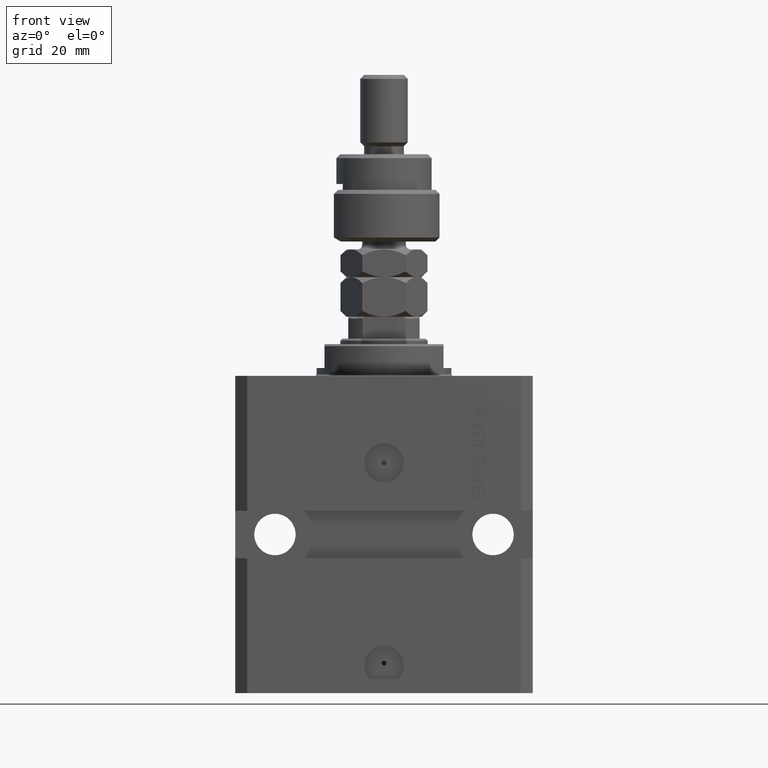
[diagram: clean part render]
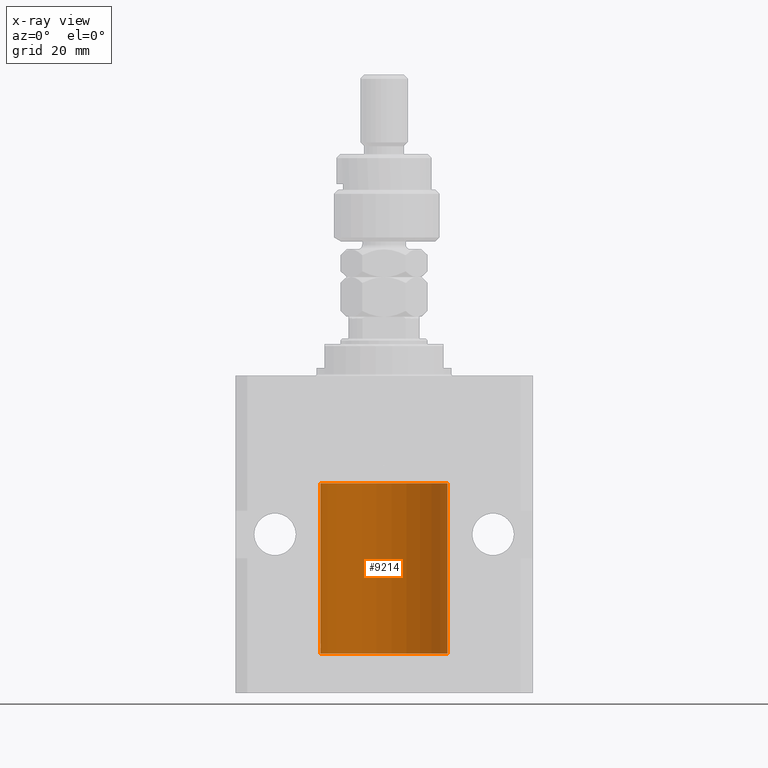
[diagram: x-ray — body ghosted, one internal face saturated and labeled with its STEP entity id]
A machine part, front view, then the same camera in x-ray: the body is ghosted and one INTERNAL B-rep face — a face not visible from any outside direction — is saturated and labeled: STEP entity #9214.
In plain terms, the highlighted cylindrical surface (partial cylindrical patch) has radius 16 mm, axis along (0, 0, 1).
Its self-contained STEP definition (entity closure, byte-faithful):
#899 = VERTEX_POINT ( 'NONE', #26130 ) ;
#2363 = EDGE_CURVE ( 'NONE', #6606, #4323, #46528, .T. ) ;
#3467 = CIRCLE ( 'NONE', #19488, 16.00000000000000000 ) ;
#4198 = CARTESIAN_POINT ( 'NONE',  ( -15.98844267028591126, 0.6088369347963314970, -68.16324735024328163 ) ) ;
#4323 = VERTEX_POINT ( 'NONE', #31046 ) ;
#6424 = AXIS2_PLACEMENT_3D ( 'NONE', #41737, #6660, #29230 ) ;
#6606 = VERTEX_POINT ( 'NONE', #46807 ) ;
#6660 = DIRECTION ( 'NONE',  ( -0.000000000000000000, -0.000000000000000000, 1.000000000000000000 ) ) ;
#7696 = CARTESIAN_POINT ( 'NONE',  ( -15.99070653155268040, 0.5573233280232966491, -67.67348148680505915 ) ) ;
#9214 = ADVANCED_FACE ( 'NONE', ( #13923 ), #25700, .F. ) ;
#9731 = CARTESIAN_POINT ( 'NONE',  ( -15.99707730059171240, 0.3150375992092334654, -67.45402333202571299 ) ) ;
#10093 = B_SPLINE_CURVE_WITH_KNOTS ( 'NONE', 3,
 ( #14734, #10725, #26023, #9731, #27005, #7696, #22991, #14976, #4198, #45835, #42554, #34784, #35026, #15463 ),
 .UNSPECIFIED., .F., .F.,
 ( 4, 2, 2, 2, 2, 2, 4 ),
 ( 9.902737362640428303E-19, 0.0002442776652680895785, 0.0004885553305361781812, 0.0009771106610723552782, 0.001221388326340464752, 0.001465665991608574008, 0.001954221322144763465 ),
 .UNSPECIFIED. ) ;
#10725 = CARTESIAN_POINT ( 'NONE',  ( -16.00000000000000711, 0.08259886010189028405, -67.37500000000001421 ) ) ;
#11223 = EDGE_CURVE ( 'NONE', #36508, #4323, #10093, .T. ) ;
#12969 = ORIENTED_EDGE ( 'NONE', *, *, #2363, .F. ) ;
#13378 = ORIENTED_EDGE ( 'NONE', *, *, #40264, .F. ) ;
#13379 = LINE ( 'NONE', #39489, #25143 ) ;
#13923 = FACE_OUTER_BOUND ( 'NONE', #41971, .T. ) ;
#13981 = CARTESIAN_POINT ( 'NONE',  ( 16.00000000000000000, 0.000000000000000000, -27.10000000000000142 ) ) ;
#14734 = CARTESIAN_POINT ( 'NONE',  ( -16.00000000000000000, -9.346608026143465119E-15, -67.37500000000000000 ) ) ;
#14935 = CARTESIAN_POINT ( 'NONE',  ( -16.00000000000000000, -9.346608026143465119E-15, -67.37500000000000000 ) ) ;
#14976 = CARTESIAN_POINT ( 'NONE',  ( -15.98778717651346426, 0.6250289588122136530, -68.08131585687053189 ) ) ;
#15000 = ORIENTED_EDGE ( 'NONE', *, *, #30706, .F. ) ;
#15463 = CARTESIAN_POINT ( 'NONE',  ( -16.00000000000013145, 3.685127046438747128E-13, -68.62500000000343903 ) ) ;
#16895 = CARTESIAN_POINT ( 'NONE',  ( -16.00000000000000000, 1.959434878635765131E-15, -70.09999999999999432 ) ) ;
#19488 = AXIS2_PLACEMENT_3D ( 'NONE', #27465, #23444, #35230 ) ;
#20649 = EDGE_CURVE ( 'NONE', #22490, #32635, #3467, .T. ) ;
#21413 = DIRECTION ( 'NONE',  ( -0.000000000000000000, -0.000000000000000000, 1.000000000000000000 ) ) ;
#22244 = CARTESIAN_POINT ( 'NONE',  ( -16.00000000000000000, 1.959434878635765131E-15, -27.10000000000000142 ) ) ;
#22490 = VERTEX_POINT ( 'NONE', #13981 ) ;
#22991 = CARTESIAN_POINT ( 'NONE',  ( -15.98779057735153586, 0.6249419637998054888, -67.83670145863507628 ) ) ;
#23444 = DIRECTION ( 'NONE',  ( 0.000000000000000000, 0.000000000000000000, 1.000000000000000000 ) ) ;
#23588 = ORIENTED_EDGE ( 'NONE', *, *, #20649, .T. ) ;
#25143 = VECTOR ( 'NONE', #32196, 1000.000000000000000 ) ;
#25700 = CYLINDRICAL_SURFACE ( 'NONE', #6424, 16.00000000000000000 ) ;
#26023 = CARTESIAN_POINT ( 'NONE',  ( -15.99934216141748244, 0.1636497843296345067, -67.39126528029308361 ) ) ;
#26130 = CARTESIAN_POINT ( 'NONE',  ( 16.00000000000000000, 0.000000000000000000, -70.09999999999999432 ) ) ;
#26814 = AXIS2_PLACEMENT_3D ( 'NONE', #30665, #31150, #34427 ) ;
#27005 = CARTESIAN_POINT ( 'NONE',  ( -15.99548640841682712, 0.3843705577988820732, -67.50046628527007897 ) ) ;
#27457 = DIRECTION ( 'NONE',  ( -0.000000000000000000, -0.000000000000000000, 1.000000000000000000 ) ) ;
#27465 = CARTESIAN_POINT ( 'NONE',  ( 0.000000000000000000, 0.000000000000000000, -27.10000000000000142 ) ) ;
#29230 = DIRECTION ( 'NONE',  ( 1.000000000000000000, 0.000000000000000000, 0.000000000000000000 ) ) ;
#30665 = CARTESIAN_POINT ( 'NONE',  ( 0.000000000000000000, 0.000000000000000000, -70.09999999999999432 ) ) ;
#30706 = EDGE_CURVE ( 'NONE', #36508, #32635, #48280, .T. ) ;
#31046 = CARTESIAN_POINT ( 'NONE',  ( -16.00000000000013145, 3.685127046438747128E-13, -68.62500000000343903 ) ) ;
#31150 = DIRECTION ( 'NONE',  ( 0.000000000000000000, 0.000000000000000000, 1.000000000000000000 ) ) ;
#32189 = ORIENTED_EDGE ( 'NONE', *, *, #11223, .T. ) ;
#32196 = DIRECTION ( 'NONE',  ( -0.000000000000000000, -0.000000000000000000, 1.000000000000000000 ) ) ;
#32635 = VERTEX_POINT ( 'NONE', #22244 ) ;
#34427 = DIRECTION ( 'NONE',  ( 1.000000000000000000, 0.000000000000000000, 0.000000000000000000 ) ) ;
#34784 = CARTESIAN_POINT ( 'NONE',  ( -15.99711699979840951, 0.3253759916140645525, -68.55856151623176231 ) ) ;
#35026 = CARTESIAN_POINT ( 'NONE',  ( -15.99999999999998934, 0.1631714642025807183, -68.62499999999984368 ) ) ;
#35230 = DIRECTION ( 'NONE',  ( 1.000000000000000000, 0.000000000000000000, 0.000000000000000000 ) ) ;
#36508 = VERTEX_POINT ( 'NONE', #14935 ) ;
#37019 = VECTOR ( 'NONE', #21413, 1000.000000000000000 ) ;
#39253 = EDGE_CURVE ( 'NONE', #899, #22490, #13379, .T. ) ;
#39489 = CARTESIAN_POINT ( 'NONE',  ( 16.00000000000000000, 0.000000000000000000, -70.09999999999999432 ) ) ;
#40264 = EDGE_CURVE ( 'NONE', #899, #6606, #42004, .T. ) ;
#41396 = VECTOR ( 'NONE', #27457, 1000.000000000000000 ) ;
#41737 = CARTESIAN_POINT ( 'NONE',  ( 0.000000000000000000, 0.000000000000000000, -70.09999999999999432 ) ) ;
#41971 = EDGE_LOOP ( 'NONE', ( #12969, #13378, #49251, #23588, #15000, #32189 ) ) ;
#42004 = CIRCLE ( 'NONE', #26814, 16.00000000000000000 ) ;
#42505 = CARTESIAN_POINT ( 'NONE',  ( -16.00000000000000000, 1.959434878635765131E-15, -70.09999999999999432 ) ) ;
#42554 = CARTESIAN_POINT ( 'NONE',  ( -15.99228023727723702, 0.5003781296993395911, -68.38347829554236057 ) ) ;
#45835 = CARTESIAN_POINT ( 'NONE',  ( -15.99070426498502862, 0.5462220647145645813, -68.31460064614141459 ) ) ;
#46528 = LINE ( 'NONE', #42505, #41396 ) ;
#46807 = CARTESIAN_POINT ( 'NONE',  ( -16.00000000000000000, 1.959434878635765131E-15, -70.09999999999999432 ) ) ;
#48280 = LINE ( 'NONE', #16895, #37019 ) ;
#49251 = ORIENTED_EDGE ( 'NONE', *, *, #39253, .T. ) ;